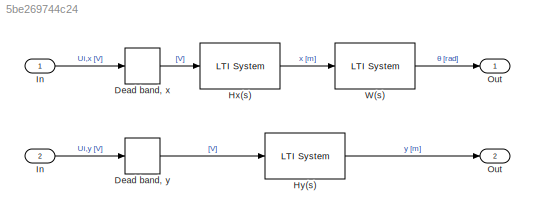
MODEL slx_5be269744c24
KIND model
CONFIG AbsTol = auto
CONFIG FixedStep = auto
CONFIG MaxStep = auto
CONFIG MinStep = auto
CONFIG RelTol = 1e-3
CONFIG SampleTimeConstraint = Unconstrained
CONFIG Solver = ode45
CONFIG SolverMode = Auto
CONFIG SolverName = ode45
CONFIG StartTime = 0.0
CONFIG StopTime = 10.0
BLOCK [DeadZone] Dead band, x
  LowerValue = 4.2
  UpperValue = 4.2
BLOCK [DeadZone] Dead band, y
  LowerValue = 4.2
  UpperValue = 4.2
BLOCK [Reference] Hx(s)  REF=cstblocks/LTI System
  IC = []
  Ports = [1, 1]
  SourceBlock = cstblocks/LTI System
  SourceType = LTI Block
  sys = Hx
BLOCK [Reference] Hy(s)  REF=cstblocks/LTI System
  IC = []
  Ports = [1, 1]
  SourceBlock = cstblocks/LTI System
  SourceType = LTI Block
  sys = Hy
BLOCK [Inport] In
  IconDisplay = Port number
BLOCK [Inport] In 
  IconDisplay = Port number
  Port = 2
BLOCK [Outport] Out
  IconDisplay = Port number
BLOCK [Outport] Out 
  IconDisplay = Port number
  Port = 2
BLOCK [Reference] W(s)  REF=cstblocks/LTI System
  IC = []
  Ports = [1, 1]
  SourceBlock = cstblocks/LTI System
  SourceType = LTI Block
  sys = W
LINE Dead band, x:1 -> Hx(s):1
LINE Dead band, y:1 -> Hy(s):1
LINE Hx(s):1 -> W(s):1
LINE Hy(s):1 -> Out :1
LINE In :1 -> Dead band, y:1
LINE In:1 -> Dead band, x:1
LINE W(s):1 -> Out:1
